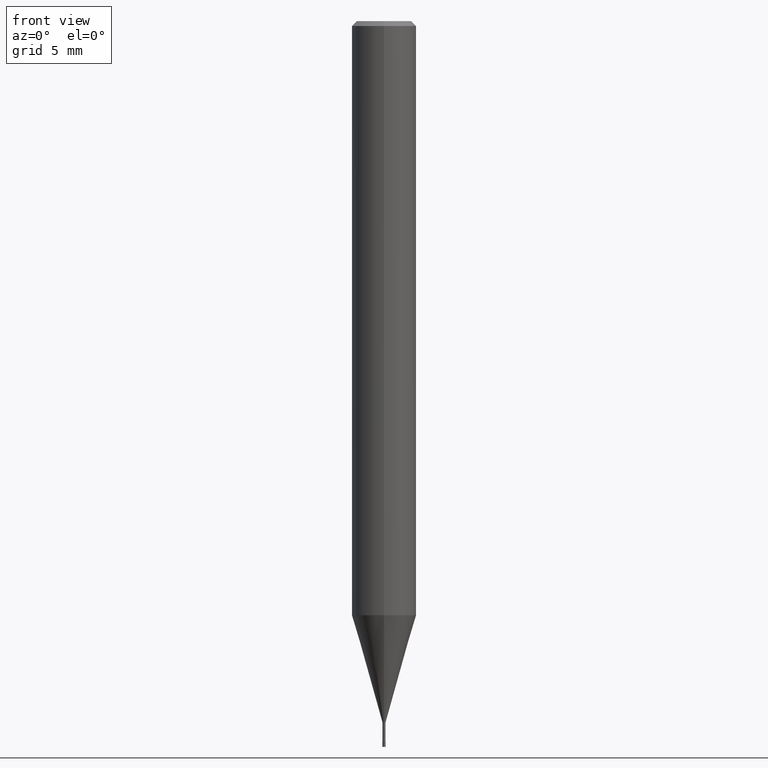
[diagram: clean part render]
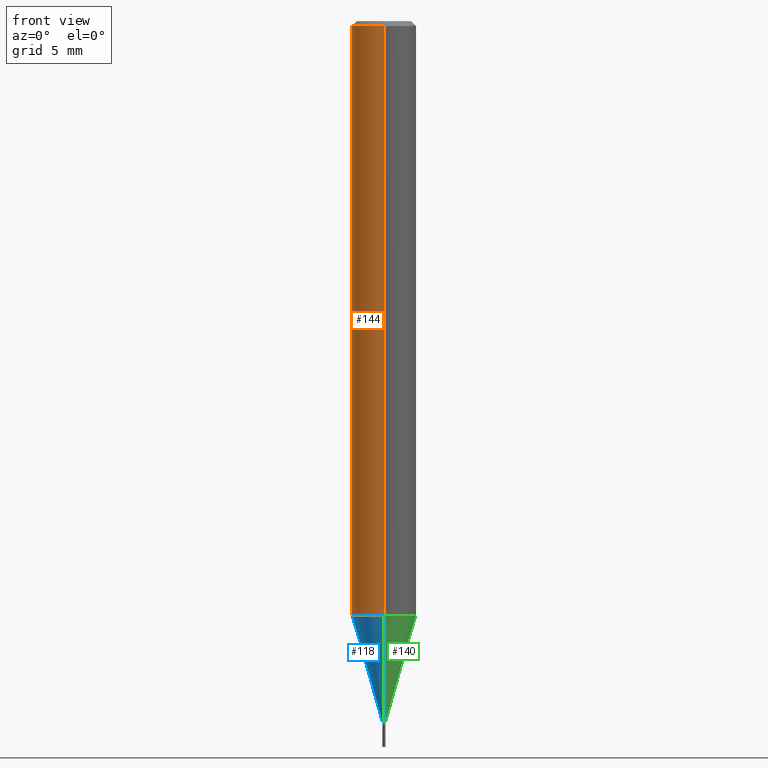
[diagram: same view with three faces highlighted in distinct colors, each labeled with its STEP entity id]
A machine part, front view with three faces highlighted in distinct colors.
Their STEP definitions:

[orange] entity #144 — the highlighted cylindrical surface (edge-blend (fillet) strip) has radius 2 mm, axis along (-0, -0, 1).
#106=EDGE_CURVE('',#204,#138,#245,.T.);
#110=EDGE_CURVE('',#138,#126,#250,.T.);
#126=VERTEX_POINT('',#268);
#138=VERTEX_POINT('',#280);
#144=ADVANCED_FACE('',(#288),#289,.T.);
#152=EDGE_CURVE('',#194,#126,#298,.T.);
#182=EDGE_CURVE('',#194,#204,#332,.T.);
#194=VERTEX_POINT('',#346);
#204=VERTEX_POINT('',#357);
#245=CIRCLE('',#397,2.0);
#250=LINE('',#403,#404);
#268=CARTESIAN_POINT('',(0.0,2.0,-36.839));
#280=CARTESIAN_POINT('',(0.0,2.0,-0.299999999999997));
#288=FACE_OUTER_BOUND('',#450,.T.);
#289=CYLINDRICAL_SURFACE('',#451,2.0);
#298=CIRCLE('',#461,2.0);
#332=LINE('',#504,#505);
#346=CARTESIAN_POINT('',(2.44921270764475E-016,-2.0,-36.839));
#357=CARTESIAN_POINT('',(2.44921270764475E-016,-2.0,-0.299999999999997));
#397=AXIS2_PLACEMENT_3D('',#563,#564,#565);
#403=CARTESIAN_POINT('',(-2.44921270764475E-016,2.0,-18.5695));
#404=VECTOR('',#572,1.0);
#450=EDGE_LOOP('',(#624,#625,#626,#627));
#451=AXIS2_PLACEMENT_3D('',#628,#629,#630);
#461=AXIS2_PLACEMENT_3D('',#637,#638,#639);
#504=CARTESIAN_POINT('',(2.44921270764475E-016,-2.0,-18.5695));
#505=VECTOR('',#684,1.0);
#563=CARTESIAN_POINT('',(0.0,0.0,-0.299999999999997));
#564=DIRECTION('',(0.0,0.0,-1.0));
#565=DIRECTION('',(0.0,1.0,0.0));
#572=DIRECTION('',(0.0,0.0,-1.0));
#624=ORIENTED_EDGE('',*,*,#110,.T.);
#625=ORIENTED_EDGE('',*,*,#152,.F.);
#626=ORIENTED_EDGE('',*,*,#182,.T.);
#627=ORIENTED_EDGE('',*,*,#106,.T.);
#628=CARTESIAN_POINT('',(0.0,0.0,-18.5695));
#629=DIRECTION('',(-0.0,-0.0,1.0));
#630=DIRECTION('',(0.0,1.0,0.0));
#637=CARTESIAN_POINT('',(0.0,0.0,-36.839));
#638=DIRECTION('',(0.0,0.0,-1.0));
#639=DIRECTION('',(0.0,1.0,0.0));
#684=DIRECTION('',(-0.0,-0.0,1.0));

[blue] entity #118 — the highlighted conical surface has half-angle 16 deg.
#100=EDGE_CURVE('',#156,#130,#239,.T.);
#104=EDGE_CURVE('',#156,#178,#243,.T.);
#118=ADVANCED_FACE('',(#258),#259,.T.);
#130=VERTEX_POINT('',#272);
#156=VERTEX_POINT('',#302);
#178=VERTEX_POINT('',#327);
#192=EDGE_CURVE('',#178,#208,#344,.T.);
#196=EDGE_CURVE('',#208,#130,#348,.T.);
#208=VERTEX_POINT('',#361);
#239=CIRCLE('',#388,0.08995);
#243=LINE('',#393,#394);
#258=FACE_OUTER_BOUND('',#415,.T.);
#259=CONICAL_SURFACE('',#416,1.04495,0.279251152364767);
#272=CARTESIAN_POINT('',(0.0,0.08995,-43.5));
#302=CARTESIAN_POINT('',(1.10153341526323E-017,-0.08995,-43.5));
#327=CARTESIAN_POINT('',(2.44915147732706E-016,-1.99995,-36.839));
#344=CIRCLE('',#520,1.99995);
#348=LINE('',#525,#526);
#361=CARTESIAN_POINT('',(0.0,1.99995,-36.839));
#388=AXIS2_PLACEMENT_3D('',#559,#560,#561);
#393=CARTESIAN_POINT('',(1.27965240942669E-016,-1.04495,-40.1695));
#394=VECTOR('',#562,1.0);
#415=EDGE_LOOP('',(#578,#579,#580,#581));
#416=AXIS2_PLACEMENT_3D('',#582,#583,#584);
#520=AXIS2_PLACEMENT_3D('',#702,#703,#704);
#525=CARTESIAN_POINT('',(-1.27965240942669E-016,1.04495,-40.1695));
#526=VECTOR('',#705,1.0);
#559=CARTESIAN_POINT('',(0.0,0.0,-43.5));
#560=DIRECTION('',(0.0,0.0,-1.0));
#561=DIRECTION('',(0.0,1.0,0.0));
#562=DIRECTION('',(3.37545458626217E-017,-0.275635887052711,0.961262117098487));
#578=ORIENTED_EDGE('',*,*,#196,.T.);
#579=ORIENTED_EDGE('',*,*,#100,.F.);
#580=ORIENTED_EDGE('',*,*,#104,.T.);
#581=ORIENTED_EDGE('',*,*,#192,.T.);
#582=CARTESIAN_POINT('',(0.0,0.0,-40.1695));
#583=DIRECTION('',(-0.0,-0.0,1.0));
#584=DIRECTION('',(0.0,1.0,0.0));
#702=CARTESIAN_POINT('',(0.0,0.0,-36.839));
#703=DIRECTION('',(0.0,0.0,-1.0));
#704=DIRECTION('',(0.0,1.0,0.0));
#705=DIRECTION('',(3.37545458626217E-017,-0.275635887052711,-0.961262117098487));

[green] entity #140 — the highlighted conical surface has half-angle 16 deg.
#104=EDGE_CURVE('',#156,#178,#243,.T.);
#120=EDGE_CURVE('',#208,#178,#261,.T.);
#130=VERTEX_POINT('',#272);
#132=EDGE_CURVE('',#130,#156,#274,.T.);
#140=ADVANCED_FACE('',(#282),#283,.T.);
#156=VERTEX_POINT('',#302);
#178=VERTEX_POINT('',#327);
#196=EDGE_CURVE('',#208,#130,#348,.T.);
#208=VERTEX_POINT('',#361);
#243=LINE('',#393,#394);
#261=CIRCLE('',#419,1.99995);
#272=CARTESIAN_POINT('',(0.0,0.08995,-43.5));
#274=CIRCLE('',#436,0.08995);
#282=FACE_OUTER_BOUND('',#444,.T.);
#283=CONICAL_SURFACE('',#445,1.04495,0.279251152364767);
#302=CARTESIAN_POINT('',(1.10153341526323E-017,-0.08995,-43.5));
#327=CARTESIAN_POINT('',(2.44915147732706E-016,-1.99995,-36.839));
#348=LINE('',#525,#526);
#361=CARTESIAN_POINT('',(0.0,1.99995,-36.839));
#393=CARTESIAN_POINT('',(1.27965240942669E-016,-1.04495,-40.1695));
#394=VECTOR('',#562,1.0);
#419=AXIS2_PLACEMENT_3D('',#585,#586,#587);
#436=AXIS2_PLACEMENT_3D('',#600,#601,#602);
#444=EDGE_LOOP('',(#608,#609,#610,#611));
#445=AXIS2_PLACEMENT_3D('',#612,#613,#614);
#525=CARTESIAN_POINT('',(-1.27965240942669E-016,1.04495,-40.1695));
#526=VECTOR('',#705,1.0);
#562=DIRECTION('',(3.37545458626217E-017,-0.275635887052711,0.961262117098487));
#585=CARTESIAN_POINT('',(0.0,0.0,-36.839));
#586=DIRECTION('',(0.0,0.0,-1.0));
#587=DIRECTION('',(0.0,1.0,0.0));
#600=CARTESIAN_POINT('',(0.0,0.0,-43.5));
#601=DIRECTION('',(0.0,0.0,-1.0));
#602=DIRECTION('',(0.0,1.0,0.0));
#608=ORIENTED_EDGE('',*,*,#196,.F.);
#609=ORIENTED_EDGE('',*,*,#120,.T.);
#610=ORIENTED_EDGE('',*,*,#104,.F.);
#611=ORIENTED_EDGE('',*,*,#132,.F.);
#612=CARTESIAN_POINT('',(0.0,0.0,-40.1695));
#613=DIRECTION('',(-0.0,-0.0,1.0));
#614=DIRECTION('',(0.0,1.0,0.0));
#705=DIRECTION('',(3.37545458626217E-017,-0.275635887052711,-0.961262117098487));